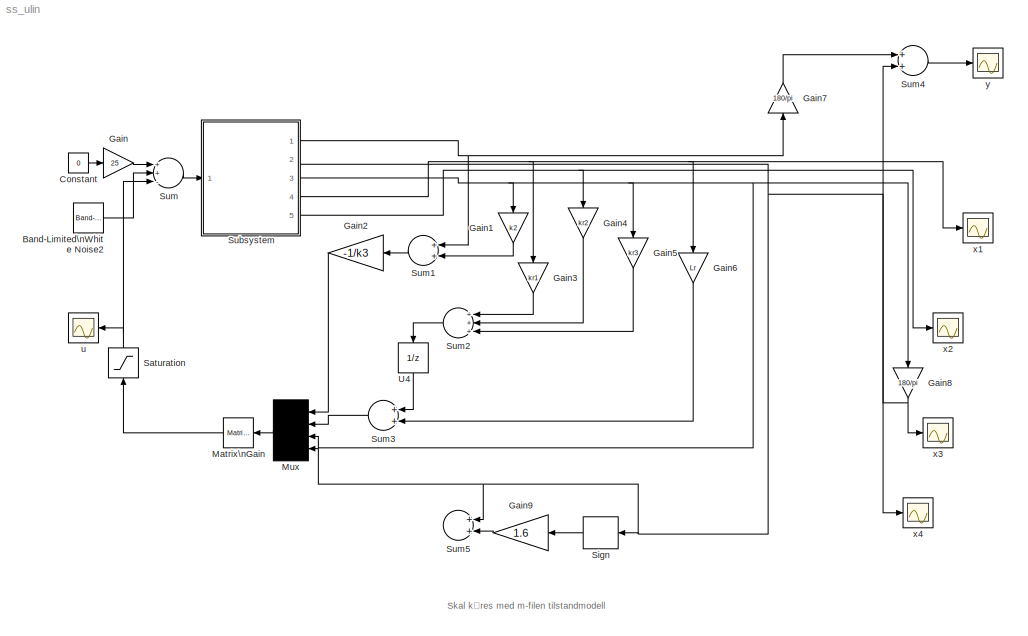
MODEL ss_ulin
KIND model
CONFIG AbsTol = 1e-6
CONFIG FixedStep = auto
CONFIG MaxStep = auto
CONFIG RelTol = 1e-3
CONFIG Solver = ode45
CONFIG StartTime = 0.0
CONFIG StopTime = 10.0
BLOCK [Reference] Band-Limited\nWhite Noise2  REF=simulink/Sources/Band-Limited\nWhite Noise
  Cov = [0.2]
  Ports = [0, 1, 0, 0, 0]
  SourceBlock = simulink/Sources/Band-Limited\nWhite Noise
  SourceType = Continuous White Noise.
  Ts = 0.025
  seed = [23341]
BLOCK [Constant] Constant
  Value = 0
BLOCK [Gain] Gain
  Gain = 25
BLOCK [Gain] Gain1
  Gain = k2
BLOCK [Gain] Gain2
  Gain = -1/k3
BLOCK [Gain] Gain3
  Gain = kr1
BLOCK [Gain] Gain4
  Gain = kr2
BLOCK [Gain] Gain5
  Gain = kr3
BLOCK [Gain] Gain6
  Gain = Lr
BLOCK [Gain] Gain7
  Gain = 180/pi
BLOCK [Gain] Gain8
  Gain = 180/pi
BLOCK [Gain] Gain9
  Gain = 1.6
BLOCK [Reference] Matrix\nGain  REF=simulink/Linear/Matrix\nGain
  K = K
  Ports = [1, 1, 0, 0, 0]
  SourceBlock = simulink/Linear/Matrix\nGain
  SourceType = Matrix Gain
BLOCK [Mux] Mux
  Inputs = 4
  Ports = [4, 1, 0, 0, 0]
BLOCK [Saturate] Saturation
  LowerLimit = -5
  UpperLimit = 5
BLOCK [Signum] Sign
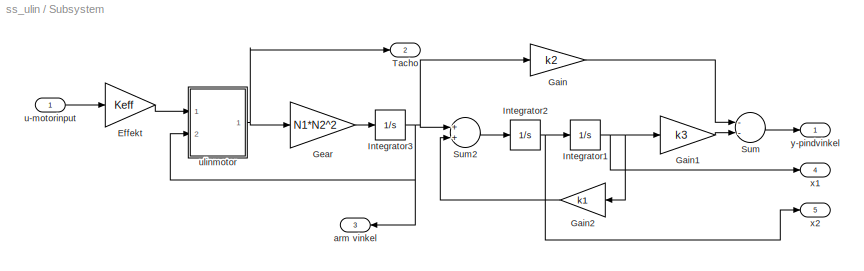
BLOCK [SubSystem] Subsystem
  Ports = [1, 5, 0, 0, 0]
  ShowPortLabels = on
BLOCK [Gain] Subsystem/Effekt
  Gain = Keff
BLOCK [Gain] Subsystem/Gain
  Gain = k2
BLOCK [Gain] Subsystem/Gain1
  Gain = k3
BLOCK [Gain] Subsystem/Gain2
  Gain = k1
BLOCK [Gain] Subsystem/Gear
  Gain = N1*N2^2
BLOCK [Integrator] Subsystem/Integrator1
  AbsoluteTolerance = auto
  ExternalReset = none
  InitialCondition = 0
  InitialConditionSource = internal
  LimitOutput = off
  LowerSaturationLimit = -inf
  Ports = [1, 1, 0, 0, 0]
  ShowSaturationPort = off
  ShowStatePort = off
  UpperSaturationLimit = inf
BLOCK [Integrator] Subsystem/Integrator2
  AbsoluteTolerance = auto
  ExternalReset = none
  InitialCondition = 0
  InitialConditionSource = internal
  LimitOutput = off
  LowerSaturationLimit = -inf
  Ports = [1, 1, 0, 0, 0]
  ShowSaturationPort = off
  ShowStatePort = off
  UpperSaturationLimit = inf
BLOCK [Integrator] Subsystem/Integrator3
  AbsoluteTolerance = auto
  ExternalReset = none
  InitialCondition = 0
  InitialConditionSource = internal
  LimitOutput = off
  LowerSaturationLimit = -inf
  Ports = [1, 1, 0, 0, 0]
  ShowSaturationPort = off
  ShowStatePort = off
  UpperSaturationLimit = inf
BLOCK [Sum] Subsystem/Sum
  Inputs = --
  Ports = [2, 1, 0, 0, 0]
BLOCK [Sum] Subsystem/Sum2
  Inputs = ++
  Ports = [2, 1, 0, 0, 0]
BLOCK [Outport] Subsystem/Tacho
  InitialOutput = 0
  OutputWhenDisabled = held
  Port = 2
BLOCK [Outport] Subsystem/arm vinkel
  InitialOutput = 0
  OutputWhenDisabled = held
  Port = 3
BLOCK [Inport] Subsystem/u-motorinput
  Port = 1
  PortWidth = -1
  SampleTime = -1
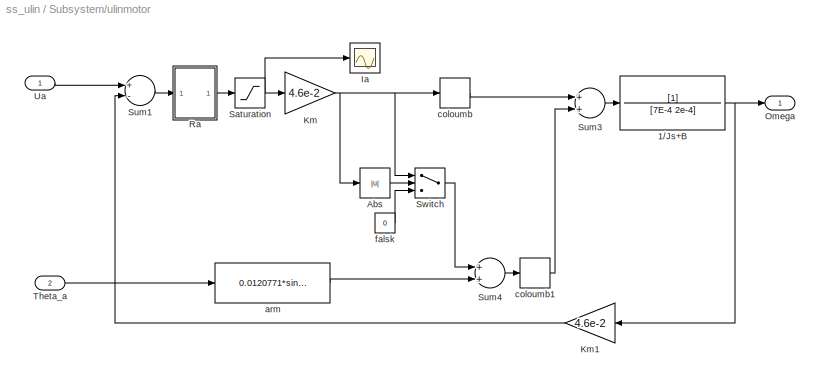
BLOCK [SubSystem] Subsystem/ulinmotor
  Ports = [2, 1, 0, 0, 0]
  ShowPortLabels = on
BLOCK [TransferFcn] Subsystem/ulinmotor/1//Js+B
  Denominator = [7E-4 2e-4]
  Numerator = [1]
BLOCK [Abs] Subsystem/ulinmotor/Abs
BLOCK [Scope] Subsystem/ulinmotor/Ia
  Decimation = 1
  Floating = off
  Grid = on
  LimitMaxRows = on
  MaxRows = 5000
  Ports = [1, 0, 0, 0, 0]
  SampleInput = off
  SampleTime = 0
  SaveName = ScopeData
  SaveToWorkspace = off
  TickLabels = on
  TimeRange = 5
  YMax = 3
  YMin = -3
  ZoomMode = on
BLOCK [Gain] Subsystem/ulinmotor/Km
  Gain = 4.6e-2
BLOCK [Gain] Subsystem/ulinmotor/Km1
  Gain = 4.6e-2
BLOCK [Outport] Subsystem/ulinmotor/Omega
  InitialOutput = 0
  OutputWhenDisabled = held
  Port = 1
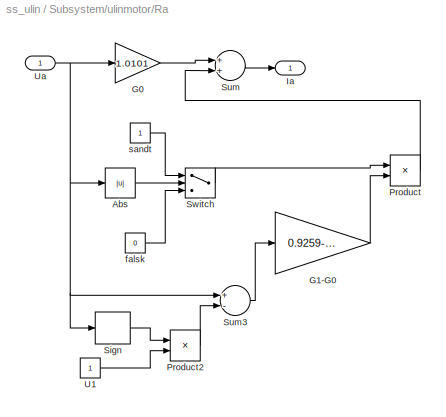
BLOCK [SubSystem] Subsystem/ulinmotor/Ra
  Ports = [1, 1, 0, 0, 0]
  ShowPortLabels = on
BLOCK [Abs] Subsystem/ulinmotor/Ra/Abs
BLOCK [Gain] Subsystem/ulinmotor/Ra/G0
  Gain = 1.0101
BLOCK [Gain] Subsystem/ulinmotor/Ra/G1-G0
  Gain = 0.9259-1.0101
BLOCK [Outport] Subsystem/ulinmotor/Ra/Ia
  InitialOutput = 0
  OutputWhenDisabled = held
  Port = 1
BLOCK [Product] Subsystem/ulinmotor/Ra/Product
  Inputs = 2
  Ports = [2, 1, 0, 0, 0]
BLOCK [Product] Subsystem/ulinmotor/Ra/Product2
  Inputs = 2
  Ports = [2, 1, 0, 0, 0]
BLOCK [Signum] Subsystem/ulinmotor/Ra/Sign
BLOCK [Sum] Subsystem/ulinmotor/Ra/Sum
  Inputs = ++
  Ports = [2, 1, 0, 0, 0]
BLOCK [Sum] Subsystem/ulinmotor/Ra/Sum3
  Inputs = +-
  Ports = [2, 1, 0, 0, 0]
BLOCK [Switch] Subsystem/ulinmotor/Ra/Switch
  Threshold = 1
BLOCK [Constant] Subsystem/ulinmotor/Ra/U1
  Value = 1
BLOCK [Inport] Subsystem/ulinmotor/Ra/Ua
  Port = 1
  PortWidth = -1
  SampleTime = -1
BLOCK [Constant] Subsystem/ulinmotor/Ra/falsk
  Value = 0
BLOCK [Constant] Subsystem/ulinmotor/Ra/sandt
  Value = 1
BLOCK [Saturate] Subsystem/ulinmotor/Saturation
  LowerLimit = -6.5
  UpperLimit = 6.5
BLOCK [Sum] Subsystem/ulinmotor/Sum1
  Inputs = +-
  Ports = [2, 1, 0, 0, 0]
BLOCK [Sum] Subsystem/ulinmotor/Sum3
  Inputs = ++
  Ports = [2, 1, 0, 0, 0]
BLOCK [Sum] Subsystem/ulinmotor/Sum4
  Inputs = ++
  Ports = [2, 1, 0, 0, 0]
BLOCK [Switch] Subsystem/ulinmotor/Switch
  Threshold = 0.09
BLOCK [Inport] Subsystem/ulinmotor/Theta_a
  Port = 2
  PortWidth = -1
  SampleTime = -1
BLOCK [Inport] Subsystem/ulinmotor/Ua
  Port = 1
  PortWidth = -1
  SampleTime = -1
BLOCK [Fcn] Subsystem/ulinmotor/arm
  Expr = 0.0120771*sin((u[1]))
BLOCK [DeadZone] Subsystem/ulinmotor/coloumb
  LowerValue = -0.09
  UpperValue = 0.09
BLOCK [DeadZone] Subsystem/ulinmotor/coloumb1
  LowerValue = -2.857
  UpperValue = 2.857
BLOCK [Constant] Subsystem/ulinmotor/falsk
  Value = 0
BLOCK [Outport] Subsystem/x1
  InitialOutput = 0
  OutputWhenDisabled = held
  Port = 4
BLOCK [Outport] Subsystem/x2
  InitialOutput = 0
  OutputWhenDisabled = held
  Port = 5
BLOCK [Outport] Subsystem/y-pindvinkel
  InitialOutput = 0
  OutputWhenDisabled = held
  Port = 1
BLOCK [Sum] Sum
  Inputs = ++-
  Ports = [3, 1, 0, 0, 0]
BLOCK [Sum] Sum1
  Inputs = ++
  Ports = [2, 1, 0, 0, 0]
BLOCK [Sum] Sum2
  Inputs = +++
  Ports = [3, 1, 0, 0, 0]
BLOCK [Sum] Sum3
  Inputs = ++
  Ports = [2, 1, 0, 0, 0]
BLOCK [Sum] Sum4
  Inputs = ++
  Ports = [2, 1, 0, 0, 0]
BLOCK [Sum] Sum5
  Inputs = ++
  Ports = [2, 1, 0, 0, 0]
BLOCK [UnitDelay] U4
  SampleTime = 0.025
  X0 = 0
BLOCK [Scope] u
  Decimation = 1
  Floating = off
  Grid = on
  LimitMaxRows = off
  MaxRows = 5000
  Ports = [1, 0, 0, 0, 0]
  SampleInput = off
  SampleTime = 0
  SaveName = ScopeData
  SaveToWorkspace = off
  TickLabels = on
  TimeRange = auto
  YMax = 5
  YMin = -5
  ZoomMode = on
BLOCK [Scope] x1
  Decimation = 1
  Floating = off
  Grid = on
  LimitMaxRows = off
  MaxRows = 5000
  Ports = [1, 0, 0, 0, 0]
  SampleInput = off
  SampleTime = 0
  SaveName = ScopeData
  SaveToWorkspace = off
  TickLabels = on
  TimeRange = auto
  YMax = 5
  YMin = -5
  ZoomMode = on
BLOCK [Scope] x2
  Decimation = 1
  Floating = off
  Grid = on
  LimitMaxRows = off
  MaxRows = 5000
  Ports = [1, 0, 0, 0, 0]
  SampleInput = off
  SampleTime = 0
  SaveName = ScopeData
  SaveToWorkspace = off
  TickLabels = on
  TimeRange = auto
  YMax = 5
  YMin = -5
  ZoomMode = on
BLOCK [Scope] x3
  Decimation = 1
  Floating = off
  Grid = on
  LimitMaxRows = off
  MaxRows = 5000
  Ports = [1, 0, 0, 0, 0]
  SampleInput = off
  SampleTime = 0
  SaveName = ScopeData
  SaveToWorkspace = off
  TickLabels = on
  TimeRange = auto
  YMax = 5
  YMin = -5
  ZoomMode = on
BLOCK [Scope] x4
  Decimation = 1
  Floating = off
  Grid = on
  LimitMaxRows = off
  MaxRows = 5000
  Ports = [1, 0, 0, 0, 0]
  SampleInput = off
  SampleTime = 0
  SaveName = ScopeData
  SaveToWorkspace = off
  TickLabels = on
  TimeRange = auto
  YMax = 5
  YMin = -5
  ZoomMode = on
BLOCK [Scope] y
  Decimation = 1
  Floating = off
  Grid = on
  LimitMaxRows = off
  MaxRows = 5000
  Ports = [1, 0, 0, 0, 0]
  SampleInput = off
  SampleTime = 0
  SaveName = ScopeData
  SaveToWorkspace = off
  TickLabels = on
  TimeRange = auto
  YMax = 5
  YMin = -5
  ZoomMode = yonly
LINE Band-Limited\nWhite Noise2:1 -> Sum:2
LINE Constant:1 -> Gain:1
LINE Gain1:1 -> Sum1:2
LINE Gain2:1 -> Mux:1
LINE Gain3:1 -> Sum2:1
LINE Gain4:1 -> Sum2:2
LINE Gain5:1 -> Sum2:3
LINE Gain6:1 -> Sum3:2
LINE Gain7:1 -> Sum4:1
NET Gain8:1 -> Sum4:2, x3:1
LINE Gain9:1 -> Sum5:2
LINE Gain:1 -> Sum:1
LINE Matrix\nGain:1 -> Saturation:1
LINE Mux:1 -> Matrix\nGain:1
NET Saturation:1 -> Sum:3, u:1
LINE Sign:1 -> Gain9:1
LINE Subsystem/Effekt:1 -> Subsystem/ulinmotor:1
LINE Subsystem/Gain1:1 -> Subsystem/Sum:2
LINE Subsystem/Gain2:1 -> Subsystem/Sum2:2
LINE Subsystem/Gain:1 -> Subsystem/Sum:1
LINE Subsystem/Gear:1 -> Subsystem/Integrator3:1
NET Subsystem/Integrator1:1 -> Subsystem/Gain1:1, Subsystem/Gain2:1, Subsystem/x1:1
NET Subsystem/Integrator2:1 -> Subsystem/Integrator1:1, Subsystem/x2:1
NET Subsystem/Integrator3:1 -> Subsystem/Gain:1, Subsystem/Sum2:1, Subsystem/arm vinkel:1, Subsystem/ulinmotor:2
LINE Subsystem/Sum2:1 -> Subsystem/Integrator2:1
LINE Subsystem/Sum:1 -> Subsystem/y-pindvinkel:1
LINE Subsystem/u-motorinput:1 -> Subsystem/Effekt:1
NET Subsystem/ulinmotor/1//Js+B:1 -> Subsystem/ulinmotor/Km1:1, Subsystem/ulinmotor/Omega:1
LINE Subsystem/ulinmotor/Abs:1 -> Subsystem/ulinmotor/Switch:2
LINE Subsystem/ulinmotor/Km1:1 -> Subsystem/ulinmotor/Sum1:2
NET Subsystem/ulinmotor/Km:1 -> Subsystem/ulinmotor/Abs:1, Subsystem/ulinmotor/Switch:1, Subsystem/ulinmotor/coloumb:1
LINE Subsystem/ulinmotor/Ra/Abs:1 -> Subsystem/ulinmotor/Ra/Switch:2
LINE Subsystem/ulinmotor/Ra/G0:1 -> Subsystem/ulinmotor/Ra/Sum:1
LINE Subsystem/ulinmotor/Ra/G1-G0:1 -> Subsystem/ulinmotor/Ra/Product:2
LINE Subsystem/ulinmotor/Ra/Product2:1 -> Subsystem/ulinmotor/Ra/Sum3:2
LINE Subsystem/ulinmotor/Ra/Product:1 -> Subsystem/ulinmotor/Ra/Sum:2
LINE Subsystem/ulinmotor/Ra/Sign:1 -> Subsystem/ulinmotor/Ra/Product2:1
LINE Subsystem/ulinmotor/Ra/Sum3:1 -> Subsystem/ulinmotor/Ra/G1-G0:1
LINE Subsystem/ulinmotor/Ra/Sum:1 -> Subsystem/ulinmotor/Ra/Ia:1
LINE Subsystem/ulinmotor/Ra/Switch:1 -> Subsystem/ulinmotor/Ra/Product:1
LINE Subsystem/ulinmotor/Ra/U1:1 -> Subsystem/ulinmotor/Ra/Product2:2
NET Subsystem/ulinmotor/Ra/Ua:1 -> Subsystem/ulinmotor/Ra/Abs:1, Subsystem/ulinmotor/Ra/G0:1, Subsystem/ulinmotor/Ra/Sign:1, Subsystem/ulinmotor/Ra/Sum3:1
LINE Subsystem/ulinmotor/Ra/falsk:1 -> Subsystem/ulinmotor/Ra/Switch:3
LINE Subsystem/ulinmotor/Ra/sandt:1 -> Subsystem/ulinmotor/Ra/Switch:1
LINE Subsystem/ulinmotor/Ra:1 -> Subsystem/ulinmotor/Saturation:1
NET Subsystem/ulinmotor/Saturation:1 -> Subsystem/ulinmotor/Ia:1, Subsystem/ulinmotor/Km:1
LINE Subsystem/ulinmotor/Sum1:1 -> Subsystem/ulinmotor/Ra:1
LINE Subsystem/ulinmotor/Sum3:1 -> Subsystem/ulinmotor/1//Js+B:1
LINE Subsystem/ulinmotor/Sum4:1 -> Subsystem/ulinmotor/coloumb1:1
LINE Subsystem/ulinmotor/Switch:1 -> Subsystem/ulinmotor/Sum4:1
LINE Subsystem/ulinmotor/Theta_a:1 -> Subsystem/ulinmotor/arm:1
LINE Subsystem/ulinmotor/Ua:1 -> Subsystem/ulinmotor/Sum1:1
LINE Subsystem/ulinmotor/arm:1 -> Subsystem/ulinmotor/Sum4:2
LINE Subsystem/ulinmotor/coloumb1:1 -> Subsystem/ulinmotor/Sum3:2
LINE Subsystem/ulinmotor/coloumb:1 -> Subsystem/ulinmotor/Sum3:1
LINE Subsystem/ulinmotor/falsk:1 -> Subsystem/ulinmotor/Switch:3
NET Subsystem/ulinmotor:1 -> Subsystem/Gear:1, Subsystem/Tacho:1
NET Subsystem:1 -> Gain7:1, Sum1:1
NET Subsystem:2 -> Mux:4, Sign:1, Sum5:1, x4:1
NET Subsystem:3 -> Gain1:1, Gain5:1, Gain8:1, Mux:3
NET Subsystem:4 -> Gain3:1, Gain6:1, x1:1
NET Subsystem:5 -> Gain4:1, x2:1
LINE Sum1:1 -> Gain2:1
LINE Sum2:1 -> U4:1
LINE Sum3:1 -> Mux:2
LINE Sum4:1 -> y:1
LINE Sum:1 -> Subsystem:1
LINE U4:1 -> Sum3:1
note: NET lines group one-source signal fan-out (src -> all destinations, sorted); 1:1 wires keep LINE
